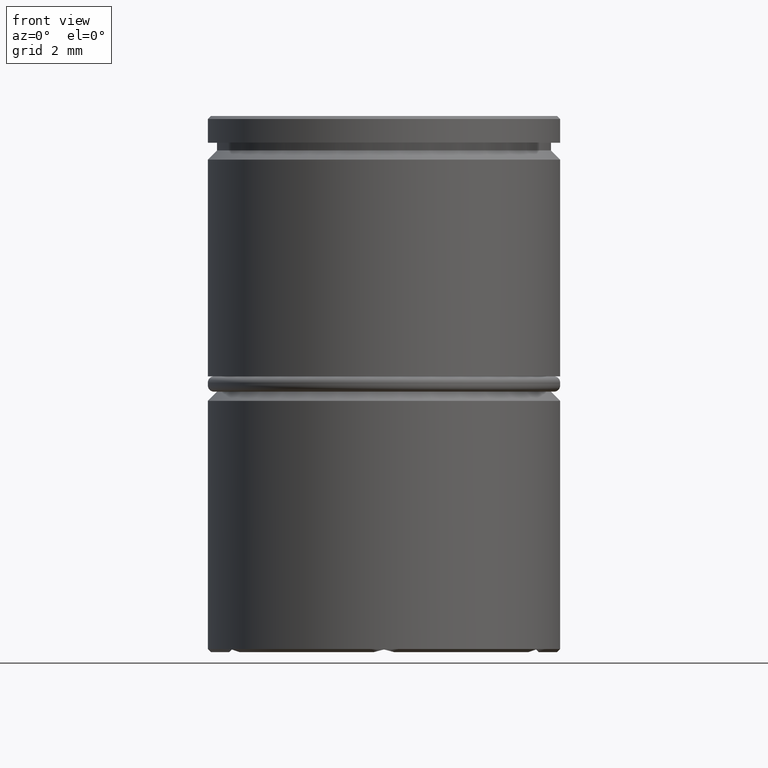
[diagram: clean part render]
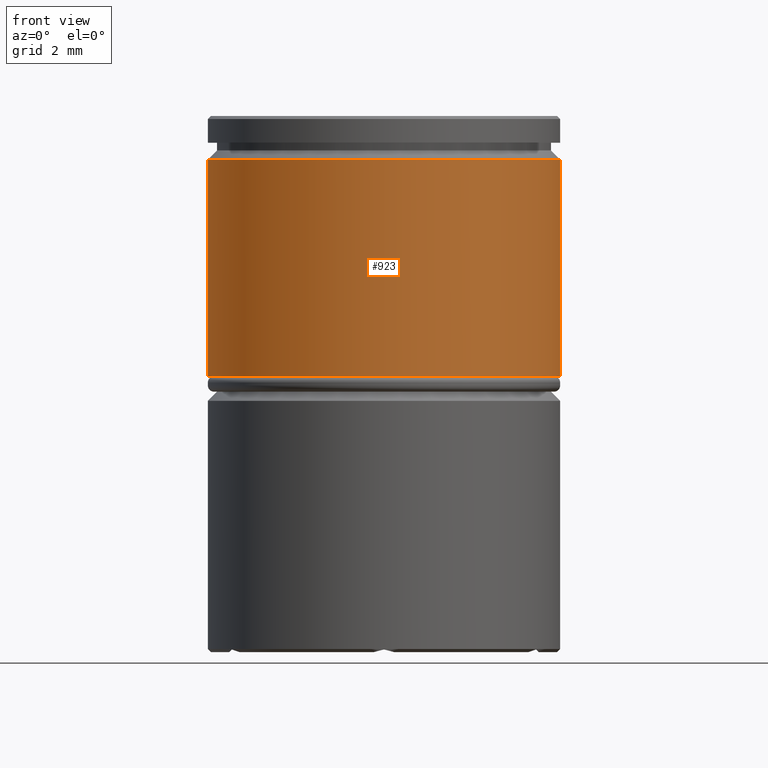
[diagram: same view with one face highlighted and labeled with its STEP entity id]
A machine part, front view. The second image highlights one B-rep face of the part: STEP entity #923.
In plain terms, the highlighted cylindrical surface (partial cylindrical patch) has radius 5.75 mm, axis along (-0, -0, 1).
Its self-contained STEP definition (entity closure, byte-faithful):
#16 = CARTESIAN_POINT ( 'NONE',  ( 0.000000000000000000, 0.000000000000000000, -8.500000000000000000 ) ) ;
#64 = ORIENTED_EDGE ( 'NONE', *, *, #1155, .T. ) ;
#82 = AXIS2_PLACEMENT_3D ( 'NONE', #266, #795, #474 ) ;
#189 = DIRECTION ( 'NONE',  ( -0.000000000000000000, -0.000000000000000000, 1.000000000000000000 ) ) ;
#197 = FACE_OUTER_BOUND ( 'NONE', #444, .T. ) ;
#205 = DIRECTION ( 'NONE',  ( -0.000000000000000000, -0.000000000000000000, 1.000000000000000000 ) ) ;
#212 = AXIS2_PLACEMENT_3D ( 'NONE', #891, #1311, #365 ) ;
#266 = CARTESIAN_POINT ( 'NONE',  ( 0.000000000000000000, 0.000000000000000000, 0.000000000000000000 ) ) ;
#289 = EDGE_CURVE ( 'NONE', #970, #1198, #1347, .T. ) ;
#293 = LINE ( 'NONE', #1255, #520 ) ;
#330 = CYLINDRICAL_SURFACE ( 'NONE', #82, 5.750000000000000000 ) ;
#340 = CARTESIAN_POINT ( 'NONE',  ( 5.750000000000000000, 0.000000000000000000, -1.424999999999994937 ) ) ;
#365 = DIRECTION ( 'NONE',  ( 1.000000000000000000, 0.000000000000000000, 0.000000000000000000 ) ) ;
#444 = EDGE_LOOP ( 'NONE', ( #1343, #1362, #64, #687 ) ) ;
#474 = DIRECTION ( 'NONE',  ( 1.000000000000000000, 0.000000000000000000, 0.000000000000000000 ) ) ;
#492 = VERTEX_POINT ( 'NONE', #340 ) ;
#512 = CARTESIAN_POINT ( 'NONE',  ( 5.750000000000000000, 0.000000000000000000, -8.500000000000000000 ) ) ;
#520 = VECTOR ( 'NONE', #205, 1000.000000000000000 ) ;
#550 = CARTESIAN_POINT ( 'NONE',  ( -5.750000000000000000, 7.041719095097280880E-16, -8.500000000000000000 ) ) ;
#646 = CIRCLE ( 'NONE', #1278, 5.750000000000000000 ) ;
#687 = ORIENTED_EDGE ( 'NONE', *, *, #1385, .T. ) ;
#704 = CARTESIAN_POINT ( 'NONE',  ( -5.750000000000000000, 7.041719095097280880E-16, 0.000000000000000000 ) ) ;
#759 = CIRCLE ( 'NONE', #212, 5.750000000000000000 ) ;
#795 = DIRECTION ( 'NONE',  ( -0.000000000000000000, -0.000000000000000000, 1.000000000000000000 ) ) ;
#860 = DIRECTION ( 'NONE',  ( -0.000000000000000000, -0.000000000000000000, 1.000000000000000000 ) ) ;
#866 = VERTEX_POINT ( 'NONE', #512 ) ;
#891 = CARTESIAN_POINT ( 'NONE',  ( 0.000000000000000000, 0.000000000000000000, -1.424999999999994937 ) ) ;
#923 = ADVANCED_FACE ( 'NONE', ( #197 ), #330, .T. ) ;
#964 = EDGE_CURVE ( 'NONE', #970, #866, #646, .T. ) ;
#970 = VERTEX_POINT ( 'NONE', #550 ) ;
#1084 = DIRECTION ( 'NONE',  ( 1.000000000000000000, 0.000000000000000000, 0.000000000000000000 ) ) ;
#1141 = CARTESIAN_POINT ( 'NONE',  ( -5.750000000000000000, 7.041719095097280880E-16, -1.424999999999994937 ) ) ;
#1155 = EDGE_CURVE ( 'NONE', #866, #492, #293, .T. ) ;
#1198 = VERTEX_POINT ( 'NONE', #1141 ) ;
#1255 = CARTESIAN_POINT ( 'NONE',  ( 5.750000000000000000, 0.000000000000000000, 0.000000000000000000 ) ) ;
#1278 = AXIS2_PLACEMENT_3D ( 'NONE', #16, #860, #1084 ) ;
#1311 = DIRECTION ( 'NONE',  ( 0.000000000000000000, 0.000000000000000000, -1.000000000000000000 ) ) ;
#1334 = VECTOR ( 'NONE', #189, 1000.000000000000000 ) ;
#1343 = ORIENTED_EDGE ( 'NONE', *, *, #289, .F. ) ;
#1347 = LINE ( 'NONE', #704, #1334 ) ;
#1362 = ORIENTED_EDGE ( 'NONE', *, *, #964, .T. ) ;
#1385 = EDGE_CURVE ( 'NONE', #492, #1198, #759, .T. ) ;